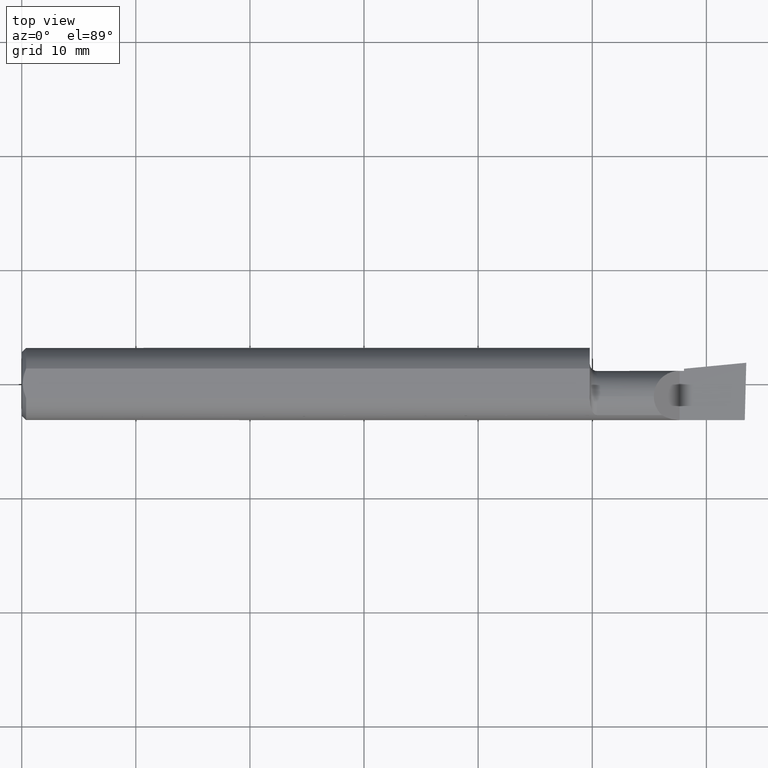
[diagram: clean part render]
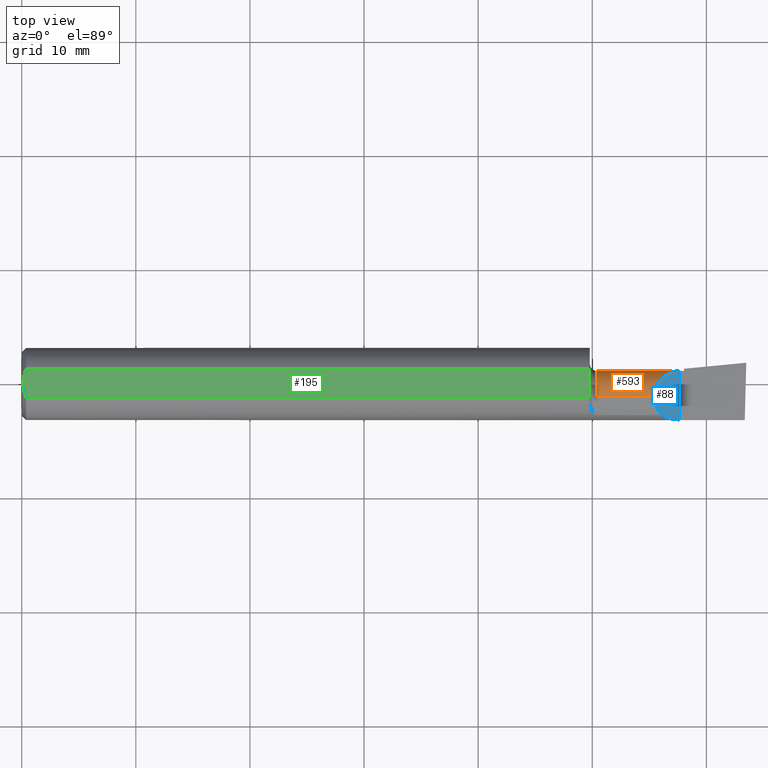
[diagram: same view with three faces highlighted in distinct colors, each labeled with its STEP entity id]
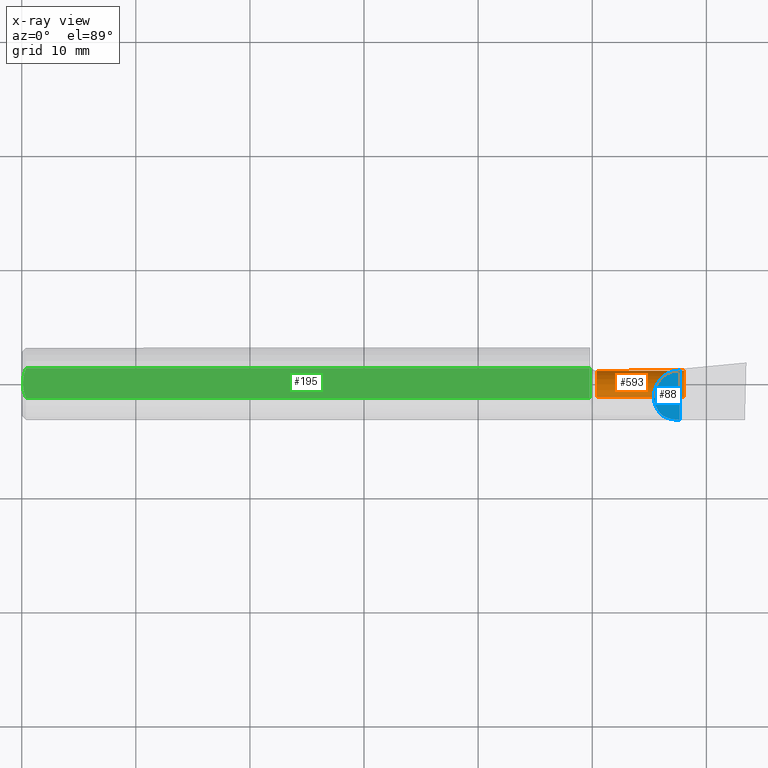
[diagram: x-ray of the same camera — body ghosted, the three highlighted faces saturated]
A machine part, top view with three faces highlighted in distinct colors.
The next image is the same camera in x-ray (body ghosted, the three faces saturated) — at least one of them is partly hidden behind the body in this view.
Their STEP definitions:

[orange] entity #593 — the highlighted cylindrical surface (edge-blend (fillet) strip) has radius 2.2644 mm, axis along (-1, -0, -0).
#6 = CARTESIAN_POINT ( 'NONE',  ( 1.985000000000000098, -0.04399999999999999745, 0.08914999999999995151 ) ) ;
#38 = CARTESIAN_POINT ( 'NONE',  ( 0.0000000000000000000, -0.04399999999999999745, 0.08914999999999997926 ) ) ;
#64 = VERTEX_POINT ( 'NONE', #597 ) ;
#76 = EDGE_CURVE ( 'NONE', #136, #64, #177, .T. ) ;
#91 = LINE ( 'NONE', #38, #205 ) ;
#107 = EDGE_CURVE ( 'NONE', #277, #349, #91, .T. ) ;
#121 = VECTOR ( 'NONE', #343, 39.37007874015748143 ) ;
#127 = CYLINDRICAL_SURFACE ( 'NONE', #546, 0.08914999999999997926 ) ;
#136 = VERTEX_POINT ( 'NONE', #664 ) ;
#142 = ORIENTED_EDGE ( 'NONE', *, *, #107, .F. ) ;
#145 = EDGE_LOOP ( 'NONE', ( #295, #507, #322, #142, #693, #522 ) ) ;
#153 = CARTESIAN_POINT ( 'NONE',  ( 1.985000000000000098, -0.04399999999999997663, -0.08914999999999995151 ) ) ;
#177 = CIRCLE ( 'NONE', #645, 0.08914999999999999314 ) ;
#205 = VECTOR ( 'NONE', #221, 39.37007874015748143 ) ;
#221 = DIRECTION ( 'NONE',  ( -1.000000000000000000, -0.0000000000000000000, -0.0000000000000000000 ) ) ;
#230 = CARTESIAN_POINT ( 'NONE',  ( 4.111069666048746882E-31, 0.04514999999999996100, 9.802154982235641300E-16 ) ) ;
#257 = AXIS2_PLACEMENT_3D ( 'NONE', #512, #573, #418 ) ;
#268 = DIRECTION ( 'NONE',  ( -1.000000000000000000, -0.0000000000000000000, -0.0000000000000000000 ) ) ;
#270 = DIRECTION ( 'NONE',  ( 0.0000000000000000000, 0.0000000000000000000, 1.000000000000000000 ) ) ;
#277 = VERTEX_POINT ( 'NONE', #500 ) ;
#287 = CARTESIAN_POINT ( 'NONE',  ( 2.217777139085560734, 0.04514999999999998181, 0.05222286091443858330 ) ) ;
#291 = EDGE_CURVE ( 'NONE', #64, #667, #413, .T. ) ;
#294 = CARTESIAN_POINT ( 'NONE',  ( 0.0000000000000000000, -0.04399999999999999745, 0.0000000000000000000 ) ) ;
#295 = ORIENTED_EDGE ( 'NONE', *, *, #76, .T. ) ;
#297 = CARTESIAN_POINT ( 'NONE',  ( 2.270000000000000018, 0.04514999999999989161, 2.816687638038912303E-17 ) ) ;
#322 = ORIENTED_EDGE ( 'NONE', *, *, #478, .F. ) ;
#329 = EDGE_CURVE ( 'NONE', #277, #547, #723, .T. ) ;
#339 = EDGE_CURVE ( 'NONE', #547, #136, #717, .T. ) ;
#343 = DIRECTION ( 'NONE',  ( -1.000000000000000000, -0.0000000000000000000, -0.0000000000000000000 ) ) ;
#349 = VERTEX_POINT ( 'NONE', #6 ) ;
#353 = DIRECTION ( 'NONE',  ( -1.000000000000000000, -0.0000000000000000000, -0.0000000000000000000 ) ) ;
#413 = LINE ( 'NONE', #724, #121 ) ;
#418 = DIRECTION ( 'NONE',  ( 0.0000000000000000000, 0.0000000000000000000, 1.000000000000000000 ) ) ;
#435 = CIRCLE ( 'NONE', #257, 0.08914999999999995151 ) ;
#478 = EDGE_CURVE ( 'NONE', #349, #667, #435, .T. ) ;
#500 = CARTESIAN_POINT ( 'NONE',  ( 2.180849999999999511, -0.04399999999999999745, 0.08914999999999997926 ) ) ;
#507 = ORIENTED_EDGE ( 'NONE', *, *, #291, .T. ) ;
#510 = CARTESIAN_POINT ( 'NONE',  ( 2.270000000000000018, 0.04514999999999989161, 2.816687638038912303E-17 ) ) ;
#512 = CARTESIAN_POINT ( 'NONE',  ( 1.985000000000000098, -0.04399999999999999745, 0.0000000000000000000 ) ) ;
#514 = DIRECTION ( 'NONE',  ( 0.0000000000000000000, 0.0000000000000000000, 1.000000000000000000 ) ) ;
#522 = ORIENTED_EDGE ( 'NONE', *, *, #339, .T. ) ;
#546 = AXIS2_PLACEMENT_3D ( 'NONE', #294, #353, #514 ) ;
#547 = VERTEX_POINT ( 'NONE', #510 ) ;
#573 = DIRECTION ( 'NONE',  ( -1.000000000000000000, -0.0000000000000000000, -0.0000000000000000000 ) ) ;
#591 = CARTESIAN_POINT ( 'NONE',  ( 2.285000000000000142, -0.04399999999999999745, 0.0000000000000000000 ) ) ;
#593 = ADVANCED_FACE ( 'NONE', ( #625 ), #127, .T. ) ;
#597 = CARTESIAN_POINT ( 'NONE',  ( 2.285000000000000142, -0.04399999999999999745, -0.08914999999999999314 ) ) ;
#615 = VECTOR ( 'NONE', #684, 39.37007874015748143 ) ;
#616 = CARTESIAN_POINT ( 'NONE',  ( 2.180849999999999067, 0.008222860914438561569, 0.08914999999999999314 ) ) ;
#625 = FACE_OUTER_BOUND ( 'NONE', #145, .T. ) ;
#645 = AXIS2_PLACEMENT_3D ( 'NONE', #591, #268, #270 ) ;
#664 = CARTESIAN_POINT ( 'NONE',  ( 2.285000000000000142, 0.04514999999999999569, 9.802154982235645244E-16 ) ) ;
#667 = VERTEX_POINT ( 'NONE', #153 ) ;
#684 = DIRECTION ( 'NONE',  ( 1.000000000000000000, 0.0000000000000000000, 0.0000000000000000000 ) ) ;
#693 = ORIENTED_EDGE ( 'NONE', *, *, #329, .T. ) ;
#717 = LINE ( 'NONE', #230, #615 ) ;
#721 = CARTESIAN_POINT ( 'NONE',  ( 2.180849999999999511, -0.04399999999999999745, 0.08914999999999997926 ) ) ;
#723 =( BOUNDED_CURVE ( )  B_SPLINE_CURVE ( 3, ( #721, #616, #287, #297 ),
 .UNSPECIFIED., .F., .T. ) 
 B_SPLINE_CURVE_WITH_KNOTS ( ( 4, 4 ),
 ( 0.0000000000000000000, 1.570796326794896558 ),
 .UNSPECIFIED. ) 
 CURVE ( )  GEOMETRIC_REPRESENTATION_ITEM ( )  RATIONAL_B_SPLINE_CURVE ( ( 1.000000000000000000, 0.8047378541243649375, 0.8047378541243649375, 1.000000000000000000 ) ) 
 REPRESENTATION_ITEM ( '' )  );
#724 = CARTESIAN_POINT ( 'NONE',  ( 0.0000000000000000000, -0.04399999999999998357, -0.08914999999999997926 ) ) ;

[blue] entity #88 — the highlighted planar face has unit normal (-0.7071, 0, -0.7071).
#5 = EDGE_CURVE ( 'NONE', #214, #277, #220, .T. ) ;
#18 = ORIENTED_EDGE ( 'NONE', *, *, #462, .T. ) ;
#25 = CARTESIAN_POINT ( 'NONE',  ( 2.270000000000000018, -0.2500000000000000555, 2.816687638038912303E-17 ) ) ;
#79 =( BOUNDED_CURVE ( )  B_SPLINE_CURVE ( 3, ( #165, #545, #449, #669 ),
 .UNSPECIFIED., .F., .T. ) 
 B_SPLINE_CURVE_WITH_KNOTS ( ( 4, 4 ),
 ( 4.712388980384689674, 5.224783288303640916 ),
 .UNSPECIFIED. ) 
 CURVE ( )  GEOMETRIC_REPRESENTATION_ITEM ( )  RATIONAL_B_SPLINE_CURVE ( ( 1.000000000000000000, 0.9782404171696013062, 0.9782404171696013062, 1.000000000000000000 ) ) 
 REPRESENTATION_ITEM ( '' )  );
#80 = DIRECTION ( 'NONE',  ( -0.7071067811865507924, 0.0000000000000000000, 0.7071067811865443531 ) ) ;
#88 = ADVANCED_FACE ( 'NONE', ( #347 ), #657, .F. ) ;
#128 = CARTESIAN_POINT ( 'NONE',  ( 2.270000000000000018, -0.1248500000000000165, 2.816687638038912303E-17 ) ) ;
#156 = ORIENTED_EDGE ( 'NONE', *, *, #171, .F. ) ;
#165 = CARTESIAN_POINT ( 'NONE',  ( 2.270000000000000018, -0.1248500000000000165, 2.816687638038912303E-17 ) ) ;
#171 = EDGE_CURVE ( 'NONE', #584, #214, #79, .T. ) ;
#214 = VERTEX_POINT ( 'NONE', #680 ) ;
#220 =( BOUNDED_CURVE ( )  B_SPLINE_CURVE ( 3, ( #311, #253, #370, #581 ),
 .UNSPECIFIED., .F., .T. ) 
 B_SPLINE_CURVE_WITH_KNOTS ( ( 4, 4 ),
 ( 5.469179596148854294, 6.283185307179586232 ),
 .UNSPECIFIED. ) 
 CURVE ( )  GEOMETRIC_REPRESENTATION_ITEM ( )  RATIONAL_B_SPLINE_CURVE ( ( 1.000000000000000000, 0.9455409277260484746, 0.9455409277260484746, 1.000000000000000000 ) ) 
 REPRESENTATION_ITEM ( '' )  );
#222 = CARTESIAN_POINT ( 'NONE',  ( 2.270000000000000018, -0.2500000000000000555, 2.816687638038912303E-17 ) ) ;
#227 = LINE ( 'NONE', #222, #335 ) ;
#229 = DIRECTION ( 'NONE',  ( -0.0000000000000000000, 1.000000000000000000, -0.0000000000000000000 ) ) ;
#253 = CARTESIAN_POINT ( 'NONE',  ( 2.190699866855738698, -0.09173194857106663214, 0.07930013314426077875 ) ) ;
#277 = VERTEX_POINT ( 'NONE', #500 ) ;
#287 = CARTESIAN_POINT ( 'NONE',  ( 2.217777139085560734, 0.04514999999999998181, 0.05222286091443858330 ) ) ;
#297 = CARTESIAN_POINT ( 'NONE',  ( 2.270000000000000018, 0.04514999999999989161, 2.816687638038912303E-17 ) ) ;
#311 = CARTESIAN_POINT ( 'NONE',  ( 2.208790356734260829, -0.1088159090909090465, 0.06120964326573886255 ) ) ;
#329 = EDGE_CURVE ( 'NONE', #277, #547, #723, .T. ) ;
#335 = VECTOR ( 'NONE', #229, 39.37007874015748143 ) ;
#347 = FACE_OUTER_BOUND ( 'NONE', #448, .T. ) ;
#370 = CARTESIAN_POINT ( 'NONE',  ( 2.180849999999999067, -0.06888227343086716914, 0.08914999999999999314 ) ) ;
#382 = DIRECTION ( 'NONE',  ( -0.7071067811865443531, 0.0000000000000000000, -0.7071067811865507924 ) ) ;
#448 = EDGE_LOOP ( 'NONE', ( #727, #156, #18, #465 ) ) ;
#449 = CARTESIAN_POINT ( 'NONE',  ( 2.227582158957104763, -0.1193864177600010706, 0.04241784104289515744 ) ) ;
#462 = EDGE_CURVE ( 'NONE', #584, #547, #227, .T. ) ;
#465 = ORIENTED_EDGE ( 'NONE', *, *, #329, .F. ) ;
#500 = CARTESIAN_POINT ( 'NONE',  ( 2.180849999999999511, -0.04399999999999999745, 0.08914999999999997926 ) ) ;
#510 = CARTESIAN_POINT ( 'NONE',  ( 2.270000000000000018, 0.04514999999999989161, 2.816687638038912303E-17 ) ) ;
#545 = CARTESIAN_POINT ( 'NONE',  ( 2.248439214200177449, -0.1248500000000000165, 0.02156078579982235316 ) ) ;
#547 = VERTEX_POINT ( 'NONE', #510 ) ;
#581 = CARTESIAN_POINT ( 'NONE',  ( 2.180849999999999511, -0.04399999999999999745, 0.08914999999999997926 ) ) ;
#584 = VERTEX_POINT ( 'NONE', #128 ) ;
#616 = CARTESIAN_POINT ( 'NONE',  ( 2.180849999999999067, 0.008222860914438561569, 0.08914999999999999314 ) ) ;
#657 = PLANE ( 'NONE',  #730 ) ;
#669 = CARTESIAN_POINT ( 'NONE',  ( 2.208790356734260829, -0.1088159090909090465, 0.06120964326573886255 ) ) ;
#680 = CARTESIAN_POINT ( 'NONE',  ( 2.208790356734260829, -0.1088159090909090465, 0.06120964326573886255 ) ) ;
#721 = CARTESIAN_POINT ( 'NONE',  ( 2.180849999999999511, -0.04399999999999999745, 0.08914999999999997926 ) ) ;
#723 =( BOUNDED_CURVE ( )  B_SPLINE_CURVE ( 3, ( #721, #616, #287, #297 ),
 .UNSPECIFIED., .F., .T. ) 
 B_SPLINE_CURVE_WITH_KNOTS ( ( 4, 4 ),
 ( 0.0000000000000000000, 1.570796326794896558 ),
 .UNSPECIFIED. ) 
 CURVE ( )  GEOMETRIC_REPRESENTATION_ITEM ( )  RATIONAL_B_SPLINE_CURVE ( ( 1.000000000000000000, 0.8047378541243649375, 0.8047378541243649375, 1.000000000000000000 ) ) 
 REPRESENTATION_ITEM ( '' )  );
#727 = ORIENTED_EDGE ( 'NONE', *, *, #5, .F. ) ;
#730 = AXIS2_PLACEMENT_3D ( 'NONE', #25, #382, #80 ) ;

[green] entity #195 — the highlighted planar face has unit normal (0, -0, -1).
#7 = CARTESIAN_POINT ( 'NONE',  ( 1.960000097795984608, -0.05124158467435454417, 0.1138500000000000345 ) ) ;
#8 = EDGE_CURVE ( 'NONE', #484, #634, #394, .T. ) ;
#22 = EDGE_CURVE ( 'NONE', #323, #678, #215, .T. ) ;
#23 = CARTESIAN_POINT ( 'NONE',  ( 1.960001800064804511, -0.04399999999999999745, 0.1138500000000000345 ) ) ;
#43 = B_SPLINE_CURVE_WITH_KNOTS ( 'NONE', 3,
 ( #357, #628, #354, #571, #7 ),
 .UNSPECIFIED., .F., .F.,
 ( 4, 1, 4 ),
 ( 0.001183372309461725802, 0.001275293521162664499, 0.001367214732863603413 ),
 .UNSPECIFIED. ) ;
#61 = AXIS2_PLACEMENT_3D ( 'NONE', #490, #661, #275 ) ;
#66 = ORIENTED_EDGE ( 'NONE', *, *, #368, .F. ) ;
#74 = LINE ( 'NONE', #118, #170 ) ;
#96 = PLANE ( 'NONE',  #61 ) ;
#100 = B_SPLINE_CURVE_WITH_KNOTS ( 'NONE', 3,
 ( #460, #504, #239, #111, #283, #337 ),
 .UNSPECIFIED., .F., .F.,
 ( 4, 2, 4 ),
 ( 0.002303251115488625690, 0.002969128157203607035, 0.003635005198918588379 ),
 .UNSPECIFIED. ) ;
#111 = CARTESIAN_POINT ( 'NONE',  ( 0.008876515511621064711, 0.03469031959364226453, 0.1138500000000000206 ) ) ;
#116 = CARTESIAN_POINT ( 'NONE',  ( 1.960000097795984608, -0.05124158467435454417, 0.1138500000000000345 ) ) ;
#118 = CARTESIAN_POINT ( 'NONE',  ( 0.0000000000000000000, -0.05124158467494919350, 0.1138500000000000345 ) ) ;
#129 = LINE ( 'NONE', #245, #246 ) ;
#170 = VECTOR ( 'NONE', #469, 39.37007874015748143 ) ;
#193 = CARTESIAN_POINT ( 'NONE',  ( 0.01168016970778672399, -0.04315282601121772643, 0.1138500000000000206 ) ) ;
#195 = ADVANCED_FACE ( 'NONE', ( #304 ), #96, .F. ) ;
#204 = CARTESIAN_POINT ( 'NONE',  ( 1.960001800064805177, -0.04262160478489881305, 0.1138500000000000761 ) ) ;
#210 = CARTESIAN_POINT ( 'NONE',  ( 1.960001800064804511, -0.04399999999999999745, 0.1138500000000000345 ) ) ;
#215 = B_SPLINE_CURVE_WITH_KNOTS ( 'NONE', 3,
 ( #587, #705, #482, #204, #210 ),
 .UNSPECIFIED., .F., .F.,
 ( 4, 1, 4 ),
 ( 0.0009734136918183535934, 0.001078393000640039644, 0.001183372309461725802 ),
 .UNSPECIFIED. ) ;
#226 = EDGE_CURVE ( 'NONE', #634, #686, #100, .T. ) ;
#234 = VERTEX_POINT ( 'NONE', #404 ) ;
#239 = CARTESIAN_POINT ( 'NONE',  ( 0.005053359673950995161, 0.01761291720128071656, 0.1138500000000000484 ) ) ;
#245 = CARTESIAN_POINT ( 'NONE',  ( 1.959999999999999964, 0.1748500000000000609, 0.1138500000000000068 ) ) ;
#246 = VECTOR ( 'NONE', #682, 39.37007874015748143 ) ;
#258 = CARTESIAN_POINT ( 'NONE',  ( 0.004000000000000278506, 1.406179932551309785E-17, 0.1138500000000000345 ) ) ;
#264 = VECTOR ( 'NONE', #554, 39.37007874015748143 ) ;
#275 = DIRECTION ( 'NONE',  ( 0.0000000000000000000, 1.000000000000000000, -1.464745492742491612E-16 ) ) ;
#283 = CARTESIAN_POINT ( 'NONE',  ( 0.01166851468367537115, 0.04312442857252158507, 0.1138500000000000345 ) ) ;
#304 = FACE_OUTER_BOUND ( 'NONE', #612, .T. ) ;
#305 = VERTEX_POINT ( 'NONE', #116 ) ;
#314 = CARTESIAN_POINT ( 'NONE',  ( 0.008889541251485982148, -0.03475029298915140868, 0.1138500000000000484 ) ) ;
#323 = VERTEX_POINT ( 'NONE', #623 ) ;
#325 = EDGE_CURVE ( 'NONE', #686, #234, #380, .T. ) ;
#334 = ORIENTED_EDGE ( 'NONE', *, *, #582, .F. ) ;
#337 = CARTESIAN_POINT ( 'NONE',  ( 0.01499999999999999424, 0.05124158467494922820, 0.1138500000000000345 ) ) ;
#350 = CARTESIAN_POINT ( 'NONE',  ( 0.004000000000000278506, 1.406179932551309785E-17, 0.1138500000000000345 ) ) ;
#354 = CARTESIAN_POINT ( 'NONE',  ( 1.960001294887844914, -0.04762079988799950564, 0.1138500000000000484 ) ) ;
#357 = CARTESIAN_POINT ( 'NONE',  ( 1.960001800064804511, -0.04399999999999999745, 0.1138500000000000345 ) ) ;
#368 = EDGE_CURVE ( 'NONE', #678, #305, #43, .T. ) ;
#380 = LINE ( 'NONE', #502, #264 ) ;
#383 = EDGE_CURVE ( 'NONE', #234, #323, #129, .T. ) ;
#394 = B_SPLINE_CURVE_WITH_KNOTS ( 'NONE', 3,
 ( #529, #193, #314, #521, #579, #258 ),
 .UNSPECIFIED., .F., .F.,
 ( 4, 2, 4 ),
 ( 0.0009713770995563920409, 0.001637314107522508866, 0.002303251115488625690 ),
 .UNSPECIFIED. ) ;
#404 = CARTESIAN_POINT ( 'NONE',  ( 1.959999999999999964, 0.05124158467494921432, 0.1138500000000000206 ) ) ;
#415 = ORIENTED_EDGE ( 'NONE', *, *, #325, .F. ) ;
#460 = CARTESIAN_POINT ( 'NONE',  ( 0.004000000000000278506, 1.406179932551309785E-17, 0.1138500000000000345 ) ) ;
#469 = DIRECTION ( 'NONE',  ( -1.000000000000000000, -0.0000000000000000000, -0.0000000000000000000 ) ) ;
#482 = CARTESIAN_POINT ( 'NONE',  ( 1.960001123980411819, -0.03986479258532011488, 0.1138500000000000484 ) ) ;
#484 = VERTEX_POINT ( 'NONE', #726 ) ;
#486 = ORIENTED_EDGE ( 'NONE', *, *, #8, .F. ) ;
#490 = CARTESIAN_POINT ( 'NONE',  ( 2.500000000000000000, 0.1748500000000000609, 0.1138500000000000068 ) ) ;
#502 = CARTESIAN_POINT ( 'NONE',  ( 0.0000000000000000000, 0.05124158467494922820, 0.1138500000000000345 ) ) ;
#504 = CARTESIAN_POINT ( 'NONE',  ( 0.004000000000000248149, 0.008831293378136255423, 0.1138500000000000345 ) ) ;
#521 = CARTESIAN_POINT ( 'NONE',  ( 0.005037769558486251270, -0.01754148797401016216, 0.1138500000000000206 ) ) ;
#529 = CARTESIAN_POINT ( 'NONE',  ( 0.01499999999999998730, -0.05124158467494919350, 0.1138500000000000345 ) ) ;
#554 = DIRECTION ( 'NONE',  ( 1.000000000000000000, 0.0000000000000000000, 0.0000000000000000000 ) ) ;
#571 = CARTESIAN_POINT ( 'NONE',  ( 1.960000312090656172, -0.05003465832588796514, 0.1138500000000000761 ) ) ;
#578 = ORIENTED_EDGE ( 'NONE', *, *, #22, .F. ) ;
#579 = CARTESIAN_POINT ( 'NONE',  ( 0.004000000000000249016, -0.008832088689467585546, 0.1138500000000000484 ) ) ;
#582 = EDGE_CURVE ( 'NONE', #305, #484, #74, .T. ) ;
#587 = CARTESIAN_POINT ( 'NONE',  ( 1.959999999999999964, -0.03572957074874694855, 0.1138500000000000345 ) ) ;
#612 = EDGE_LOOP ( 'NONE', ( #578, #651, #415, #685, #486, #334, #66 ) ) ;
#623 = CARTESIAN_POINT ( 'NONE',  ( 1.959999999999999964, -0.03572957074874694855, 0.1138500000000000345 ) ) ;
#628 = CARTESIAN_POINT ( 'NONE',  ( 1.960001800064804733, -0.04520694029896969723, 0.1138500000000000206 ) ) ;
#634 = VERTEX_POINT ( 'NONE', #350 ) ;
#651 = ORIENTED_EDGE ( 'NONE', *, *, #383, .F. ) ;
#654 = CARTESIAN_POINT ( 'NONE',  ( 0.01499999999999999424, 0.05124158467494922820, 0.1138500000000000345 ) ) ;
#661 = DIRECTION ( 'NONE',  ( 0.0000000000000000000, -1.464745492742491612E-16, -1.000000000000000000 ) ) ;
#678 = VERTEX_POINT ( 'NONE', #23 ) ;
#682 = DIRECTION ( 'NONE',  ( 0.0000000000000000000, -1.000000000000000000, 1.464745492742491612E-16 ) ) ;
#685 = ORIENTED_EDGE ( 'NONE', *, *, #226, .F. ) ;
#686 = VERTEX_POINT ( 'NONE', #654 ) ;
#705 = CARTESIAN_POINT ( 'NONE',  ( 1.960000000000000187, -0.03710796596384815377, 0.1138500000000000206 ) ) ;
#726 = CARTESIAN_POINT ( 'NONE',  ( 0.01499999999999998730, -0.05124158467494919350, 0.1138500000000000345 ) ) ;